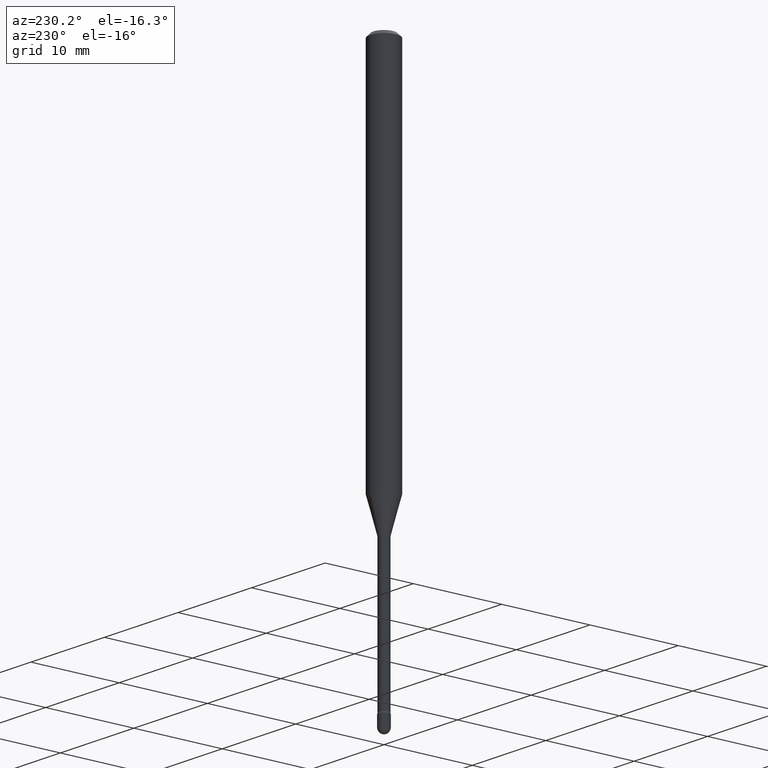
[diagram: clean part render]
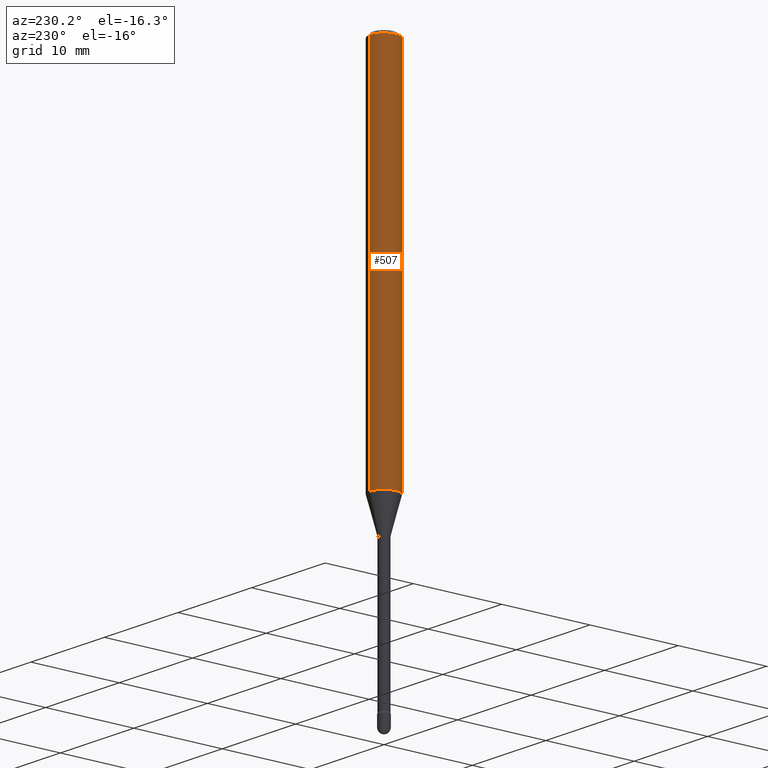
[diagram: same view with one face highlighted and labeled with its STEP entity id]
A machine part, auxiliary view. The second image highlights one B-rep face of the part: STEP entity #507.
In plain terms, the highlighted cylindrical surface (edge-blend (fillet) strip) has radius 1.5875 mm, axis along (-0, 0, 1).
Its self-contained STEP definition (entity closure, byte-faithful):
#4 = VECTOR ( 'NONE', #22, 39.37007874015748143 ) ;
#19 = AXIS2_PLACEMENT_3D ( 'NONE', #367, #153, #357 ) ;
#22 = DIRECTION ( 'NONE',  ( -2.445453670294399760E-29, 3.491503014300162329E-15, 1.000000000000000000 ) ) ;
#39 = DIRECTION ( 'NONE',  ( -6.982962677686265922E-15, -1.000000000000000000, 4.370956789862821150E-15 ) ) ;
#42 = CARTESIAN_POINT ( 'NONE',  ( 4.440892098500625669E-16, 0.06250000000000000000, 2.598544604974859177E-16 ) ) ;
#71 = CIRCLE ( 'NONE', #19, 0.06250000000000000000 ) ;
#76 = CARTESIAN_POINT ( 'NONE',  ( -4.364351673553912750E-16, -0.06250000000000005551, -0.01499999999999986587 ) ) ;
#82 = EDGE_LOOP ( 'NONE', ( #220, #327, #170, #370 ) ) ;
#103 = VERTEX_POINT ( 'NONE', #187 ) ;
#118 = CARTESIAN_POINT ( 'NONE',  ( 4.440892098501030453E-16, 0.06249999999999995143, -0.01500000000000030129 ) ) ;
#129 = AXIS2_PLACEMENT_3D ( 'NONE', #389, #565, #169 ) ;
#153 = DIRECTION ( 'NONE',  ( -2.445453670294399480E-29, 3.491503014300162329E-15, 1.000000000000000000 ) ) ;
#162 = CYLINDRICAL_SURFACE ( 'NONE', #129, 0.06250000000000000000 ) ;
#169 = DIRECTION ( 'NONE',  ( -6.982962677686265922E-15, -1.000000000000000000, 3.491503014300161935E-15 ) ) ;
#170 = ORIENTED_EDGE ( 'NONE', *, *, #372, .T. ) ;
#187 = CARTESIAN_POINT ( 'NONE',  ( 4.440892098501025523E-16, 0.06249999999999423378, -1.644225147374218210 ) ) ;
#220 = ORIENTED_EDGE ( 'NONE', *, *, #503, .F. ) ;
#236 = VERTEX_POINT ( 'NONE', #473 ) ;
#252 = AXIS2_PLACEMENT_3D ( 'NONE', #433, #472, #39 ) ;
#269 = VERTEX_POINT ( 'NONE', #118 ) ;
#274 = LINE ( 'NONE', #530, #4 ) ;
#286 = VERTEX_POINT ( 'NONE', #76 ) ;
#306 = FACE_OUTER_BOUND ( 'NONE', #82, .T. ) ;
#327 = ORIENTED_EDGE ( 'NONE', *, *, #470, .T. ) ;
#332 = EDGE_CURVE ( 'NONE', #269, #286, #71, .T. ) ;
#357 = DIRECTION ( 'NONE',  ( -6.982962677686265922E-15, -1.000000000000000000, 3.483106191921935554E-15 ) ) ;
#367 = CARTESIAN_POINT ( 'NONE',  ( 3.668180505441619486E-31, -5.237254521450272361E-17, -0.01500000000000008271 ) ) ;
#370 = ORIENTED_EDGE ( 'NONE', *, *, #332, .F. ) ;
#372 = EDGE_CURVE ( 'NONE', #236, #286, #274, .T. ) ;
#381 = DIRECTION ( 'NONE',  ( -2.445453670294399760E-29, 3.491503014300162329E-15, 1.000000000000000000 ) ) ;
#389 = CARTESIAN_POINT ( 'NONE',  ( -1.169113584055446105E-44, 1.669184350826100908E-30, 4.780733988912460139E-16 ) ) ;
#429 = LINE ( 'NONE', #42, #460 ) ;
#433 = CARTESIAN_POINT ( 'NONE',  ( 4.020876421436631309E-29, -5.740817058245210280E-15, -1.644225147374217988 ) ) ;
#460 = VECTOR ( 'NONE', #381, 39.37007874015748143 ) ;
#470 = EDGE_CURVE ( 'NONE', #103, #236, #512, .T. ) ;
#472 = DIRECTION ( 'NONE',  ( -2.445453670294399480E-29, 3.491503014300162329E-15, 1.000000000000000000 ) ) ;
#473 = CARTESIAN_POINT ( 'NONE',  ( -4.364351673553515854E-16, -0.06250000000000575928, -1.644225147374217544 ) ) ;
#503 = EDGE_CURVE ( 'NONE', #103, #269, #429, .T. ) ;
#507 = ADVANCED_FACE ( 'NONE', ( #306 ), #162, .T. ) ;
#512 = CIRCLE ( 'NONE', #252, 0.06250000000000000000 ) ;
#530 = CARTESIAN_POINT ( 'NONE',  ( -4.364351673553916201E-16, -0.06250000000000000000, 6.962923372850062088E-16 ) ) ;
#565 = DIRECTION ( 'NONE',  ( -2.445453670294399480E-29, 3.491503014300162329E-15, 1.000000000000000000 ) ) ;